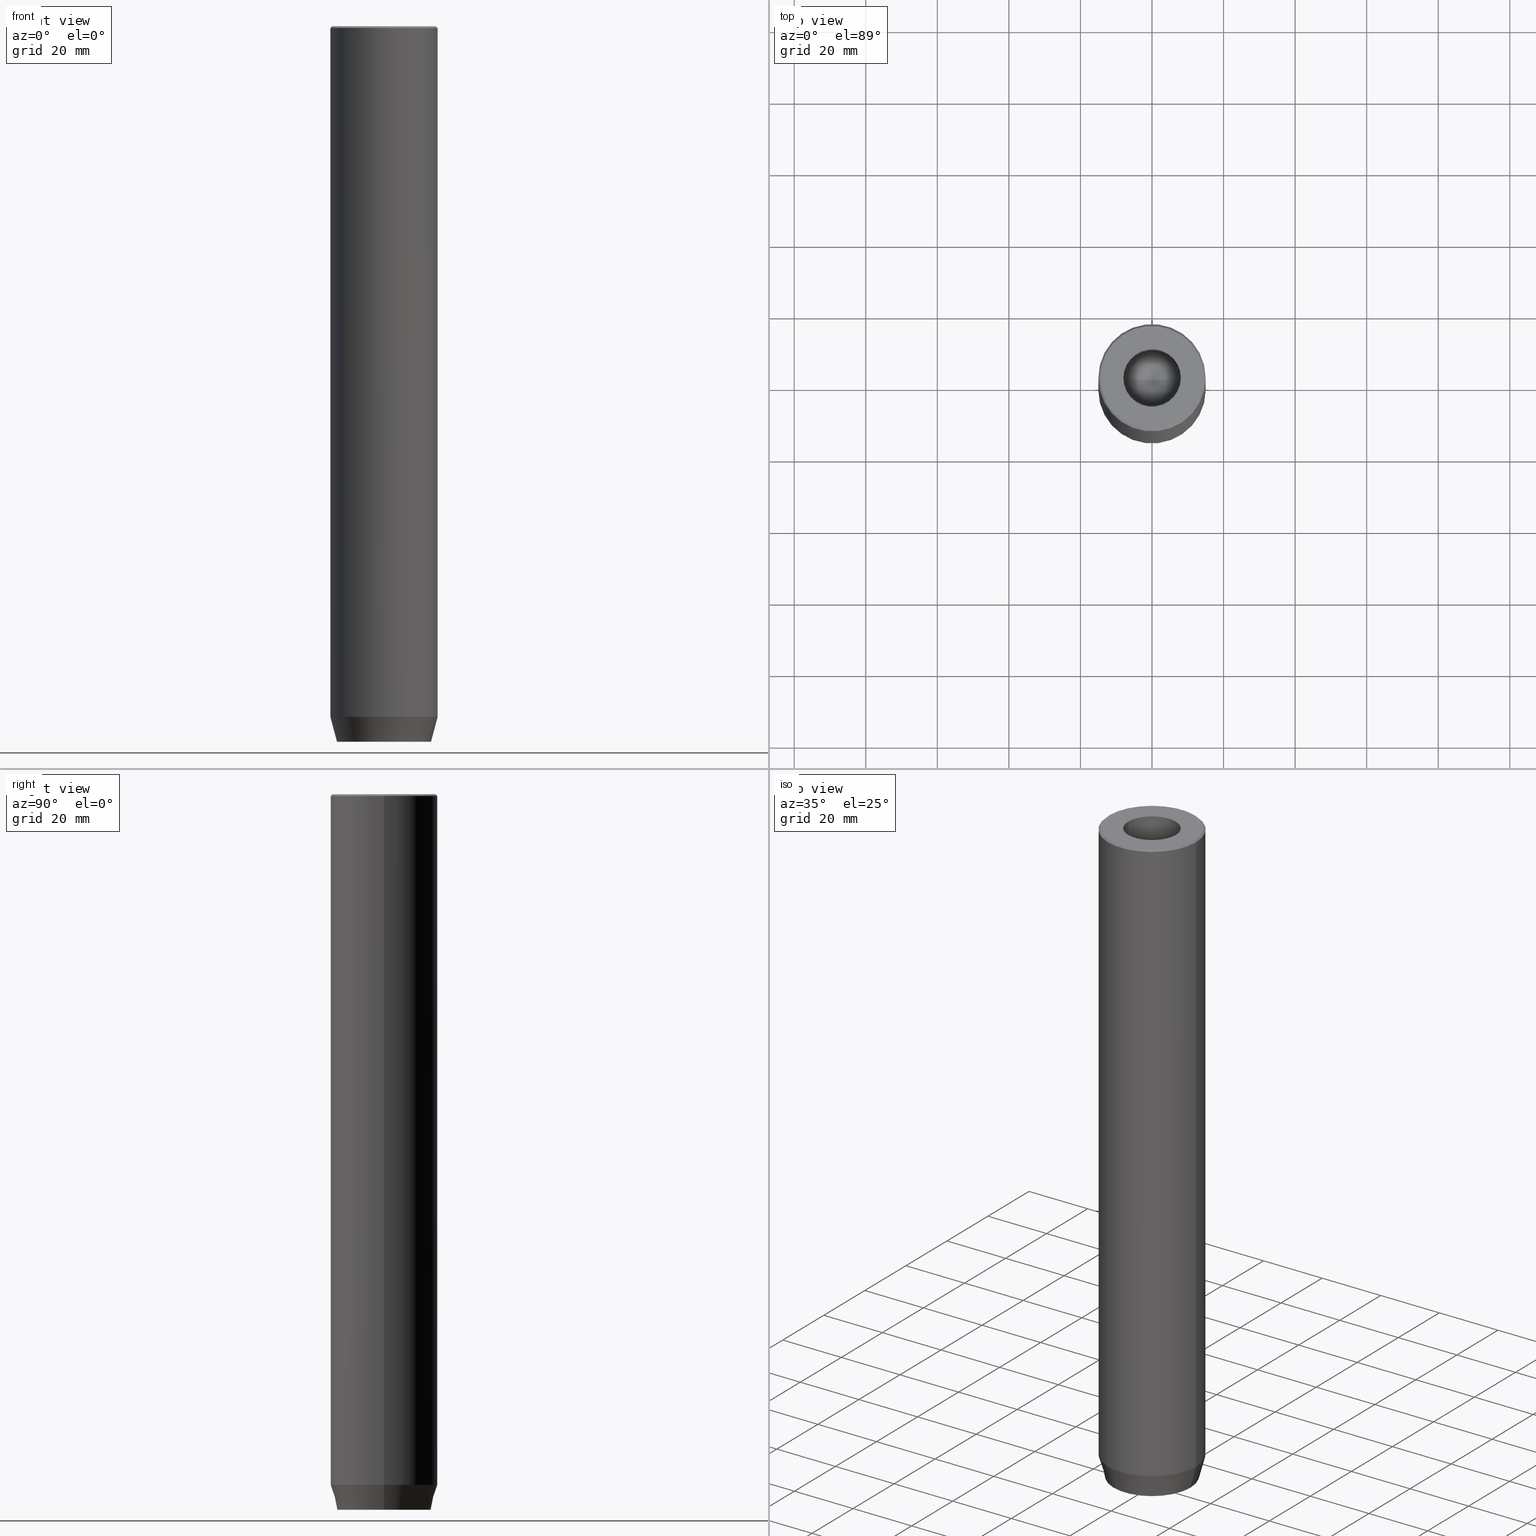
[diagram: canonical four-view strip — front | top / right | iso, engineering-drawing reading convention]
A machine part, canonical four-view strip (front | top / right | iso — engineering-drawing reading convention). The complete STEP part file that produces these views, byte-faithful:
ISO-10303-21;
HEADER;
FILE_DESCRIPTION (( 'STEP AP203' ),
    '1' );
FILE_NAME ('3c3d.STEP',
    '2024-01-02T17:24:24',
    ( '' ),
    ( '' ),
    'SwSTEP 2.0',
    'SolidWorks 2019',
    '' );
FILE_SCHEMA (( 'CONFIG_CONTROL_DESIGN' ));
ENDSEC;

DATA;
#1 = DIRECTION ( 'NONE',  ( 0.4999999999999999445, 0.8660254037844387076, -0.000000000000000000 ) ) ;
#2 = DIRECTION ( 'NONE',  ( 1.000000000000000000, 0.000000000000000000, 0.000000000000000000 ) ) ;
#3 = DIRECTION ( 'NONE',  ( -1.000000000000000000, 3.755786496842898071E-16, 0.000000000000000000 ) ) ;
#4 = ORIENTED_EDGE ( 'NONE', *, *, #317, .T. ) ;
#5 = CARTESIAN_POINT ( 'NONE',  ( 1.999999999999999556, -3.464101615137754386, -200.0000000000000000 ) ) ;
#6 = CARTESIAN_POINT ( 'NONE',  ( 0.000000000000000000, 0.000000000000000000, -0.5000000000000108802 ) ) ;
#7 = ORIENTED_EDGE ( 'NONE', *, *, #298, .F. ) ;
#8 = EDGE_CURVE ( 'NONE', #416, #528, #284, .T. ) ;
#9 = DIRECTION ( 'NONE',  ( -0.000000000000000000, -0.000000000000000000, 1.000000000000000000 ) ) ;
#10 = AXIS2_PLACEMENT_3D ( 'NONE', #308, #341, #344 ) ;
#11 = CIRCLE ( 'NONE', #462, 7.999999999999996447 ) ;
#12 = DIRECTION ( 'NONE',  ( 1.000000000000000000, 0.000000000000000000, 0.000000000000000000 ) ) ;
#13 = APPLICATION_PROTOCOL_DEFINITION ( 'international standard', 'config_control_design', 1994, #187 ) ;
#14 = ORIENTED_EDGE ( 'NONE', *, *, #618, .T. ) ;
#15 = DIRECTION ( 'NONE',  ( 1.000000000000000000, 0.000000000000000000, 0.000000000000000000 ) ) ;
#16 = EDGE_CURVE ( 'NONE', #60, #363, #444, .T. ) ;
#17 = DIRECTION ( 'NONE',  ( 1.000000000000000000, 0.000000000000000000, 0.000000000000000000 ) ) ;
#18 = CONICAL_SURFACE ( 'NONE', #10, 7.999999999999994671, 1.029744258676653423 ) ;
#19 = AXIS2_PLACEMENT_3D ( 'NONE', #282, #147, #104 ) ;
#20 = ORIENTED_EDGE ( 'NONE', *, *, #557, .F. ) ;
#21 = DIRECTION ( 'NONE',  ( -0.000000000000000000, -0.000000000000000000, 1.000000000000000000 ) ) ;
#22 = CARTESIAN_POINT ( 'NONE',  ( 1.999999999999999556, -3.464101615137754386, -194.2000000000000171 ) ) ;
#23 = ORIENTED_EDGE ( 'NONE', *, *, #403, .F. ) ;
#24 = APPROVAL_STATUS ( 'not_yet_approved' ) ;
#25 = DIRECTION ( 'NONE',  ( -0.8660254037844387076, 0.4999999999999997224, 0.000000000000000000 ) ) ;
#26 = ORIENTED_EDGE ( 'NONE', *, *, #107, .F. ) ;
#27 = DATE_AND_TIME ( #522, #112 ) ;
#28 = EDGE_CURVE ( 'NONE', #180, #60, #118, .T. ) ;
#29 = CYLINDRICAL_SURFACE ( 'NONE', #443, 7.999999999999996447 ) ;
#30 = AXIS2_PLACEMENT_3D ( 'NONE', #36, #421, #137 ) ;
#31 = ORIENTED_EDGE ( 'NONE', *, *, #74, .F. ) ;
#32 = COORDINATED_UNIVERSAL_TIME_OFFSET ( 1, 0, .AHEAD. ) ;
#33 = CARTESIAN_POINT ( 'NONE',  ( -7.999999999999994671, 9.797174393178819741E-16, -30.00000000000000000 ) ) ;
#34 = EDGE_LOOP ( 'NONE', ( #480, #562, #468 ) ) ;
#35 = APPROVAL_ROLE ( '' ) ;
#36 = CARTESIAN_POINT ( 'NONE',  ( 0.000000000000000000, 13.12435565298213369, -200.0000000000000000 ) ) ;
#37 = ADVANCED_FACE ( 'NONE', ( #534 ), #93, .F. ) ;
#38 = ORIENTED_EDGE ( 'NONE', *, *, #84, .T. ) ;
#39 = VECTOR ( 'NONE', #136, 1000.000000000000000 ) ;
#40 = DIRECTION ( 'NONE',  ( -0.8660254037844387076, 0.4999999999999997224, 0.000000000000000000 ) ) ;
#41 = VERTEX_POINT ( 'NONE', #486 ) ;
#42 = AXIS2_PLACEMENT_3D ( 'NONE', #129, #183, #81 ) ;
#43 = VECTOR ( 'NONE', #67, 1000.000000000000000 ) ;
#44 = DIRECTION ( 'NONE',  ( -0.000000000000000000, -0.000000000000000000, 1.000000000000000000 ) ) ;
#45 = ORIENTED_EDGE ( 'NONE', *, *, #557, .T. ) ;
#46 = CARTESIAN_POINT ( 'NONE',  ( 0.000000000000000000, 0.000000000000000000, -30.00000000000000000 ) ) ;
#47 = DIRECTION ( 'NONE',  ( 1.000000000000000000, 0.000000000000000000, 0.000000000000000000 ) ) ;
#48 = EDGE_CURVE ( 'NONE', #465, #521, #632, .T. ) ;
#49 = DIRECTION ( 'NONE',  ( 0.8660254037844387076, -0.4999999999999997780, 0.000000000000000000 ) ) ;
#50 = VERTEX_POINT ( 'NONE', #438 ) ;
#51 = DIRECTION ( 'NONE',  ( 1.000000000000000000, 0.000000000000000000, 0.000000000000000000 ) ) ;
#52 = VECTOR ( 'NONE', #153, 1000.000000000000000 ) ;
#53 = CARTESIAN_POINT ( 'NONE',  ( 0.000000000000000000, 0.000000000000000000, -194.2000000000000171 ) ) ;
#54 = ORIENTED_EDGE ( 'NONE', *, *, #420, .T. ) ;
#55 = DIRECTION ( 'NONE',  ( -0.000000000000000000, -0.000000000000000000, 1.000000000000000000 ) ) ;
#56 = CARTESIAN_POINT ( 'NONE',  ( 8.673617379884035472E-16, -4.618802153517004960, -194.2000000000000171 ) ) ;
#57 = EDGE_CURVE ( 'NONE', #41, #359, #333, .T. ) ;
#58 = CARTESIAN_POINT ( 'NONE',  ( 0.000000000000000000, 0.000000000000000000, -0.2999999999999999889 ) ) ;
#59 = DIRECTION ( 'NONE',  ( 0.000000000000000000, 0.000000000000000000, -1.000000000000000000 ) ) ;
#60 = VERTEX_POINT ( 'NONE', #394 ) ;
#61 = DIRECTION ( 'NONE',  ( 0.000000000000000000, 0.000000000000000000, 1.000000000000000000 ) ) ;
#62 =( GEOMETRIC_REPRESENTATION_CONTEXT ( 3 ) GLOBAL_UNCERTAINTY_ASSIGNED_CONTEXT ( ( #580 ) ) GLOBAL_UNIT_ASSIGNED_CONTEXT ( ( #116, #417, #364 ) ) REPRESENTATION_CONTEXT ( 'NONE', 'WORKASPACE' ) );
#63 = CARTESIAN_POINT ( 'NONE',  ( -7.999999999999996447, 9.797174393178821713E-16, -0.2999999999999999889 ) ) ;
#64 = ORIENTED_EDGE ( 'NONE', *, *, #505, .T. ) ;
#65 = DIRECTION ( 'NONE',  ( 0.000000000000000000, -1.000000000000000000, 0.000000000000000000 ) ) ;
#66 = ORIENTED_EDGE ( 'NONE', *, *, #98, .T. ) ;
#67 = DIRECTION ( 'NONE',  ( -0.000000000000000000, -0.000000000000000000, 1.000000000000000000 ) ) ;
#68 = FACE_OUTER_BOUND ( 'NONE', #429, .T. ) ;
#69 = CIRCLE ( 'NONE', #536, 14.49999999999998401 ) ;
#70 = AXIS2_PLACEMENT_3D ( 'NONE', #602, #21, #210 ) ;
#71 = ORIENTED_EDGE ( 'NONE', *, *, #243, .F. ) ;
#72 = CC_DESIGN_APPROVAL ( #79, ( #206 ) ) ;
#73 = CARTESIAN_POINT ( 'NONE',  ( 0.000000000000000000, 0.000000000000000000, -0.2999999999999999889 ) ) ;
#74 = EDGE_CURVE ( 'NONE', #363, #402, #501, .T. ) ;
#75 = ORIENTED_EDGE ( 'NONE', *, *, #185, .T. ) ;
#76 = PERSON_AND_ORGANIZATION ( #234, #586 ) ;
#77 = DIRECTION ( 'NONE',  ( 0.000000000000000000, -1.000000000000000000, 0.000000000000000000 ) ) ;
#78 = EDGE_LOOP ( 'NONE', ( #507, #7, #407, #31 ) ) ;
#79 = APPROVAL ( #24, 'NEUR�EN�' ) ;
#80 = APPROVAL_DATE_TIME ( #367, #79 ) ;
#81 = DIRECTION ( 'NONE',  ( 1.000000000000000000, 0.000000000000000000, 0.000000000000000000 ) ) ;
#82 = ORIENTED_EDGE ( 'NONE', *, *, #543, .T. ) ;
#83 = VECTOR ( 'NONE', #77, 1000.000000000000000 ) ;
#84 = EDGE_CURVE ( 'NONE', #608, #422, #91, .T. ) ;
#85 = DIRECTION ( 'NONE',  ( -0.000000000000000000, -0.000000000000000000, -1.000000000000000000 ) ) ;
#86 = ORIENTED_EDGE ( 'NONE', *, *, #164, .F. ) ;
#87 = PERSON_AND_ORGANIZATION ( #234, #586 ) ;
#88 = CARTESIAN_POINT ( 'NONE',  ( 0.000000000000000000, 0.000000000000000000, -193.0000000000000000 ) ) ;
#89 = CC_DESIGN_DATE_AND_TIME_ASSIGNMENT ( #323, #218, ( #206 ) ) ;
#90 = EDGE_LOOP ( 'NONE', ( #235, #598, #509 ) ) ;
#91 = CIRCLE ( 'NONE', #342, 7.999999999999996447 ) ;
#92 = LINE ( 'NONE', #377, #628 ) ;
#93 = PLANE ( 'NONE',  #166 ) ;
#94 = AXIS2_PLACEMENT_3D ( 'NONE', #6, #201, #405 ) ;
#95 = CIRCLE ( 'NONE', #205, 8.299999999999997158 ) ;
#96 = DIRECTION ( 'NONE',  ( 0.000000000000000000, 0.000000000000000000, -1.000000000000000000 ) ) ;
#97 = CARTESIAN_POINT ( 'NONE',  ( 15.00000000000000000, 0.000000000000000000, 0.000000000000000000 ) ) ;
#98 = EDGE_CURVE ( 'NONE', #353, #270, #517, .T. ) ;
#99 = CARTESIAN_POINT ( 'NONE',  ( 4.000000000000000000, -2.309401076758503368, -200.0000000000000000 ) ) ;
#100 = CARTESIAN_POINT ( 'NONE',  ( 4.000000000000000000, 2.309401076758504257, -194.2000000000000171 ) ) ;
#101 = DIRECTION ( 'NONE',  ( 1.000000000000000000, 0.000000000000000000, 0.000000000000000000 ) ) ;
#102 = DIRECTION ( 'NONE',  ( 0.000000000000000000, 0.000000000000000000, -1.000000000000000000 ) ) ;
#103 = EDGE_LOOP ( 'NONE', ( #249, #71, #573, #274 ) ) ;
#104 = DIRECTION ( 'NONE',  ( 1.000000000000000000, 0.000000000000000000, 0.000000000000000000 ) ) ;
#105 = CIRCLE ( 'NONE', #368, 13.12435565298213369 ) ;
#106 = TOROIDAL_SURFACE ( 'NONE', #70, 8.299999999999997158, 0.2999999999999999889 ) ;
#107 = EDGE_CURVE ( 'NONE', #559, #422, #199, .T. ) ;
#108 = DIRECTION ( 'NONE',  ( 0.000000000000000000, 0.000000000000000000, -1.000000000000000000 ) ) ;
#109 = LINE ( 'NONE', #361, #123 ) ;
#110 = CARTESIAN_POINT ( 'NONE',  ( -2.000000000000000000, 3.464101615137755275, -200.0000000000000000 ) ) ;
#111 = ORIENTED_EDGE ( 'NONE', *, *, #48, .F. ) ;
#112 = LOCAL_TIME ( 18, 24, 24.00000000000000000, #470 ) ;
#113 = ADVANCED_FACE ( 'NONE', ( #148 ), #265, .T. ) ;
#114 = DIRECTION ( 'NONE',  ( -0.8660254037844385966, -0.4999999999999998890, 0.000000000000000000 ) ) ;
#115 = ORIENTED_EDGE ( 'NONE', *, *, #396, .T. ) ;
#116 =( LENGTH_UNIT ( ) NAMED_UNIT ( * ) SI_UNIT ( .MILLI., .METRE. ) );
#117 = FACE_OUTER_BOUND ( 'NONE', #146, .T. ) ;
#118 = CIRCLE ( 'NONE', #198, 15.00000000000000000 ) ;
#119 = ORIENTED_EDGE ( 'NONE', *, *, #370, .T. ) ;
#120 = PERSON_AND_ORGANIZATION ( #234, #586 ) ;
#121 = DIRECTION ( 'NONE',  ( 1.000000000000000000, 0.000000000000000000, 0.000000000000000000 ) ) ;
#122 = ADVANCED_FACE ( 'NONE', ( #68 ), #269, .T. ) ;
#123 = VECTOR ( 'NONE', #599, 1000.000000000000000 ) ;
#124 = AXIS2_PLACEMENT_3D ( 'NONE', #606, #9, #354 ) ;
#125 = ORIENTED_EDGE ( 'NONE', *, *, #604, .F. ) ;
#126 = FACE_OUTER_BOUND ( 'NONE', #524, .T. ) ;
#127 = ORIENTED_EDGE ( 'NONE', *, *, #396, .F. ) ;
#128 = SECURITY_CLASSIFICATION_LEVEL ( 'unclassified' ) ;
#129 = CARTESIAN_POINT ( 'NONE',  ( 0.000000000000000000, 0.000000000000000000, -30.00000000000000000 ) ) ;
#130 = ORIENTED_EDGE ( 'NONE', *, *, #164, .T. ) ;
#131 = AXIS2_PLACEMENT_3D ( 'NONE', #162, #597, #108 ) ;
#132 = ADVANCED_FACE ( 'NONE', ( #312 ), #296, .F. ) ;
#133 = LINE ( 'NONE', #369, #345 ) ;
#134 = ORIENTED_EDGE ( 'NONE', *, *, #298, .T. ) ;
#135 = CARTESIAN_POINT ( 'NONE',  ( -4.000000000000001776, -2.309401076758503368, -200.0000000000000000 ) ) ;
#136 = DIRECTION ( 'NONE',  ( -0.000000000000000000, -0.000000000000000000, -1.000000000000000000 ) ) ;
#137 = DIRECTION ( 'NONE',  ( -1.000000000000000000, 0.000000000000000000, -0.000000000000000000 ) ) ;
#138 = ORIENTED_EDGE ( 'NONE', *, *, #525, .F. ) ;
#139 = AXIS2_PLACEMENT_3D ( 'NONE', #337, #539, #47 ) ;
#140 = AXIS2_PLACEMENT_3D ( 'NONE', #495, #1, #500 ) ;
#141 = DIRECTION ( 'NONE',  ( -0.8660254037844385966, -0.4999999999999998890, 0.000000000000000000 ) ) ;
#142 = ADVANCED_FACE ( 'NONE', ( #297 ), #18, .F. ) ;
#143 = DIRECTION ( 'NONE',  ( -0.000000000000000000, -0.000000000000000000, 1.000000000000000000 ) ) ;
#144 = AXIS2_PLACEMENT_3D ( 'NONE', #259, #302, #17 ) ;
#145 = PLANE ( 'NONE',  #494 ) ;
#146 = EDGE_LOOP ( 'NONE', ( #514, #161, #299, #266 ) ) ;
#147 = DIRECTION ( 'NONE',  ( 0.000000000000000000, -0.000000000000000000, 1.000000000000000000 ) ) ;
#148 = FACE_OUTER_BOUND ( 'NONE', #556, .T. ) ;
#149 = EDGE_CURVE ( 'NONE', #465, #457, #415, .T. ) ;
#150 = LINE ( 'NONE', #304, #553 ) ;
#151 = DIRECTION ( 'NONE',  ( -0.000000000000000000, -0.000000000000000000, 1.000000000000000000 ) ) ;
#152 = EDGE_LOOP ( 'NONE', ( #134, #163 ) ) ;
#153 = DIRECTION ( 'NONE',  ( -0.7071067811865512365, 0.000000000000000000, -0.7071067811865439090 ) ) ;
#154 = CIRCLE ( 'NONE', #547, 13.12435565298213369 ) ;
#155 = DIRECTION ( 'NONE',  ( -1.000000000000000000, 0.000000000000000000, -0.000000000000000000 ) ) ;
#156 = EDGE_LOOP ( 'NONE', ( #619, #309, #518, #257 ) ) ;
#157 = CYLINDRICAL_SURFACE ( 'NONE', #124, 15.00000000000000000 ) ;
#158 = EDGE_CURVE ( 'NONE', #228, #416, #590, .T. ) ;
#159 = FACE_OUTER_BOUND ( 'NONE', #220, .T. ) ;
#160 = CONICAL_SURFACE ( 'NONE', #408, 15.00000000000000000, 0.2617993877991500740 ) ;
#161 = ORIENTED_EDGE ( 'NONE', *, *, #227, .F. ) ;
#162 = CARTESIAN_POINT ( 'NONE',  ( 8.299999999999997158, 0.000000000000000000, -0.2999999999999999889 ) ) ;
#163 = ORIENTED_EDGE ( 'NONE', *, *, #538, .T. ) ;
#164 = EDGE_CURVE ( 'NONE', #306, #270, #351, .T. ) ;
#165 = CARTESIAN_POINT ( 'NONE',  ( -4.000000000000000888, 1.502314598737159623E-15, -194.2000000000000171 ) ) ;
#166 = AXIS2_PLACEMENT_3D ( 'NONE', #482, #436, #491 ) ;
#167 = VERTEX_POINT ( 'NONE', #452 ) ;
#168 = CALENDAR_DATE ( 2024, 2, 1 ) ;
#169 = FACE_BOUND ( 'NONE', #566, .T. ) ;
#170 = CONICAL_SURFACE ( 'NONE', #585, 14.49999999999998401, 0.7853981633974533860 ) ;
#171 = ORIENTED_EDGE ( 'NONE', *, *, #57, .F. ) ;
#172 = DATE_TIME_ROLE ( 'creation_date' ) ;
#173 = DIRECTION ( 'NONE',  ( -0.000000000000000000, -0.000000000000000000, -1.000000000000000000 ) ) ;
#174 = ORIENTED_EDGE ( 'NONE', *, *, #350, .T. ) ;
#175 = COORDINATED_UNIVERSAL_TIME_OFFSET ( 1, 0, .AHEAD. ) ;
#176 = PLANE ( 'NONE',  #30 ) ;
#177 = ORIENTED_EDGE ( 'NONE', *, *, #543, .F. ) ;
#178 = CARTESIAN_POINT ( 'NONE',  ( 15.00000000000000000, 0.000000000000000000, -0.5000000000000108802 ) ) ;
#179 = CIRCLE ( 'NONE', #42, 7.999999999999994671 ) ;
#180 = VERTEX_POINT ( 'NONE', #550 ) ;
#181 = AXIS2_PLACEMENT_3D ( 'NONE', #58, #461, #15 ) ;
#182 = APPROVAL_STATUS ( 'not_yet_approved' ) ;
#183 = DIRECTION ( 'NONE',  ( -0.000000000000000000, -0.000000000000000000, 1.000000000000000000 ) ) ;
#184 = EDGE_LOOP ( 'NONE', ( #215, #541, #244, #26 ) ) ;
#185 = EDGE_CURVE ( 'NONE', #167, #318, #105, .T. ) ;
#186 = CARTESIAN_POINT ( 'NONE',  ( 4.000000000000000000, 2.309401076758504257, -194.2000000000000171 ) ) ;
#187 = APPLICATION_CONTEXT ( 'configuration controlled 3d designs of mechanical parts and assemblies' ) ;
#188 = ORIENTED_EDGE ( 'NONE', *, *, #84, .F. ) ;
#189 = CARTESIAN_POINT ( 'NONE',  ( -15.00000000000000000, 1.836970198721029589E-15, 0.000000000000000000 ) ) ;
#190 = PRODUCT_DEFINITION ( 'NEZN�M�', '', #638, #332 ) ;
#191 = EDGE_LOOP ( 'NONE', ( #4, #411, #241, #448 ) ) ;
#192 = CC_DESIGN_APPROVAL ( #300, ( #190 ) ) ;
#193 = FACE_OUTER_BOUND ( 'NONE', #34, .T. ) ;
#194 = DIRECTION ( 'NONE',  ( -0.8660254037844385966, -0.4999999999999998890, 0.000000000000000000 ) ) ;
#195 = EDGE_CURVE ( 'NONE', #270, #489, #558, .T. ) ;
#196 = LINE ( 'NONE', #584, #537 ) ;
#197 = DIRECTION ( 'NONE',  ( 3.755786496842898071E-16, 1.000000000000000000, 0.000000000000000000 ) ) ;
#198 = AXIS2_PLACEMENT_3D ( 'NONE', #335, #378, #385 ) ;
#199 = CIRCLE ( 'NONE', #131, 0.2999999999999999889 ) ;
#200 = FACE_OUTER_BOUND ( 'NONE', #339, .T. ) ;
#201 = DIRECTION ( 'NONE',  ( 0.000000000000000000, 0.000000000000000000, -1.000000000000000000 ) ) ;
#202 = ORIENTED_EDGE ( 'NONE', *, *, #195, .T. ) ;
#203 = AXIS2_PLACEMENT_3D ( 'NONE', #22, #216, #418 ) ;
#204 = CYLINDRICAL_SURFACE ( 'NONE', #144, 15.00000000000000000 ) ;
#205 = AXIS2_PLACEMENT_3D ( 'NONE', #552, #453, #262 ) ;
#206 = SECURITY_CLASSIFICATION ( '', '', #128 ) ;
#207 = DIRECTION ( 'NONE',  ( 0.8660254037844387076, -0.4999999999999999445, 0.000000000000000000 ) ) ;
#208 = CARTESIAN_POINT ( 'NONE',  ( 7.999999999999996447, 0.000000000000000000, 0.000000000000000000 ) ) ;
#209 = ADVANCED_FACE ( 'NONE', ( #117 ), #512, .F. ) ;
#210 = DIRECTION ( 'NONE',  ( 1.000000000000000000, 0.000000000000000000, 0.000000000000000000 ) ) ;
#211 = ORIENTED_EDGE ( 'NONE', *, *, #513, .T. ) ;
#212 = FACE_OUTER_BOUND ( 'NONE', #459, .T. ) ;
#213 = AXIS2_PLACEMENT_3D ( 'NONE', #242, #398, #51 ) ;
#214 = ADVANCED_FACE ( 'NONE', ( #610 ), #446, .F. ) ;
#215 = ORIENTED_EDGE ( 'NONE', *, *, #505, .F. ) ;
#216 = DIRECTION ( 'NONE',  ( 0.5000000000000000000, -0.8660254037844387076, 0.000000000000000000 ) ) ;
#217 = VERTEX_POINT ( 'NONE', #498 ) ;
#218 = DATE_TIME_ROLE ( 'classification_date' ) ;
#219 = CARTESIAN_POINT ( 'NONE',  ( -13.12435565298213369, 1.722120106425316888E-15, -200.0000000000000000 ) ) ;
#220 = EDGE_LOOP ( 'NONE', ( #496, #554, #614, #188 ) ) ;
#221 = APPROVAL_DATE_TIME ( #27, #300 ) ;
#222 = DIRECTION ( 'NONE',  ( -0.000000000000000000, -0.000000000000000000, 1.000000000000000000 ) ) ;
#223 = VECTOR ( 'NONE', #463, 999.9999999999998863 ) ;
#224 = AXIS2_PLACEMENT_3D ( 'NONE', #502, #61, #571 ) ;
#225 = ORIENTED_EDGE ( 'NONE', *, *, #305, .F. ) ;
#226 = DIRECTION ( 'NONE',  ( -0.000000000000000000, -0.000000000000000000, 1.000000000000000000 ) ) ;
#227 = EDGE_CURVE ( 'NONE', #457, #217, #401, .T. ) ;
#228 = VERTEX_POINT ( 'NONE', #450 ) ;
#229 = DIRECTION ( 'NONE',  ( 1.000000000000000000, 0.000000000000000000, 0.000000000000000000 ) ) ;
#230 = CC_DESIGN_PERSON_AND_ORGANIZATION_ASSIGNMENT ( #267, #466, ( #542 ) ) ;
#231 = ORIENTED_EDGE ( 'NONE', *, *, #8, .F. ) ;
#232 = DATE_AND_TIME ( #423, #273 ) ;
#233 = CARTESIAN_POINT ( 'NONE',  ( 0.000000000000000000, 0.000000000000000000, 0.000000000000000000 ) ) ;
#234 = PERSON ( 'NEUR�EN�', 'NEUR�EN�', 'NEUR�EN�', ('NEUR�EN�'), ('NEUR�EN�'), ('NEUR�EN�') ) ;
#235 = ORIENTED_EDGE ( 'NONE', *, *, #464, .F. ) ;
#236 = CIRCLE ( 'NONE', #596, 0.2999999999999999334 ) ;
#237 = EDGE_CURVE ( 'NONE', #402, #363, #311, .T. ) ;
#238 = DIRECTION ( 'NONE',  ( 1.000000000000000000, 0.000000000000000000, 0.000000000000000000 ) ) ;
#239 = VERTEX_POINT ( 'NONE', #623 ) ;
#240 = CARTESIAN_POINT ( 'NONE',  ( -1.999999999999999112, -3.464101615137755275, -194.2000000000000171 ) ) ;
#241 = ORIENTED_EDGE ( 'NONE', *, *, #391, .F. ) ;
#242 = CARTESIAN_POINT ( 'NONE',  ( 0.000000000000000000, 0.000000000000000000, 0.000000000000000000 ) ) ;
#243 = EDGE_CURVE ( 'NONE', #359, #41, #179, .T. ) ;
#244 = ORIENTED_EDGE ( 'NONE', *, *, #439, .F. ) ;
#245 = AXIS2_PLACEMENT_3D ( 'NONE', #535, #449, #343 ) ;
#246 = DIRECTION ( 'NONE',  ( 1.000000000000000000, 0.000000000000000000, 0.000000000000000000 ) ) ;
#247 = CC_DESIGN_PERSON_AND_ORGANIZATION_ASSIGNMENT ( #275, #376, ( #206 ) ) ;
#248 = CARTESIAN_POINT ( 'NONE',  ( 0.000000000000000000, 0.000000000000000000, -200.0000000000000000 ) ) ;
#249 = ORIENTED_EDGE ( 'NONE', *, *, #350, .F. ) ;
#250 = LINE ( 'NONE', #5, #484 ) ;
#251 = DIRECTION ( 'NONE',  ( -0.000000000000000000, -0.000000000000000000, -1.000000000000000000 ) ) ;
#252 = FACE_OUTER_BOUND ( 'NONE', #156, .T. ) ;
#253 = CARTESIAN_POINT ( 'NONE',  ( 2.000000000000000000, 3.464101615137755275, -194.2000000000000171 ) ) ;
#254 = EDGE_LOOP ( 'NONE', ( #202, #225, #138, #130 ) ) ;
#255 = ADVANCED_FACE ( 'NONE', ( #476 ), #170, .T. ) ;
#256 = VECTOR ( 'NONE', #25, 1000.000000000000114 ) ;
#257 = ORIENTED_EDGE ( 'NONE', *, *, #74, .T. ) ;
#258 = DIRECTION ( 'NONE',  ( 0.8660254037844387076, -0.4999999999999999445, 0.000000000000000000 ) ) ;
#259 = CARTESIAN_POINT ( 'NONE',  ( 0.000000000000000000, 0.000000000000000000, 0.000000000000000000 ) ) ;
#260 = EDGE_CURVE ( 'NONE', #50, #363, #92, .T. ) ;
#261 = ORIENTED_EDGE ( 'NONE', *, *, #618, .F. ) ;
#262 = DIRECTION ( 'NONE',  ( 1.000000000000000000, 0.000000000000000000, 0.000000000000000000 ) ) ;
#263 = CARTESIAN_POINT ( 'NONE',  ( 0.000000000000000000, 0.000000000000000000, 0.000000000000000000 ) ) ;
#264 = ORIENTED_EDGE ( 'NONE', *, *, #271, .T. ) ;
#265 = PLANE ( 'NONE',  #334 ) ;
#266 = ORIENTED_EDGE ( 'NONE', *, *, #48, .T. ) ;
#267 = PERSON_AND_ORGANIZATION ( #234, #586 ) ;
#268 = DIRECTION ( 'NONE',  ( 1.000000000000000000, 0.000000000000000000, 0.000000000000000000 ) ) ;
#269 = CONICAL_SURFACE ( 'NONE', #575, 14.49999999999998401, 0.7853981633974533860 ) ;
#270 = VERTEX_POINT ( 'NONE', #620 ) ;
#271 = EDGE_CURVE ( 'NONE', #239, #353, #133, .T. ) ;
#272 = DIRECTION ( 'NONE',  ( -0.000000000000000000, -0.000000000000000000, 1.000000000000000000 ) ) ;
#273 = LOCAL_TIME ( 18, 24, 24.00000000000000000, #175 ) ;
#274 = ORIENTED_EDGE ( 'NONE', *, *, #439, .T. ) ;
#275 = PERSON_AND_ORGANIZATION ( #234, #586 ) ;
#276 = DIRECTION ( 'NONE',  ( 1.000000000000000000, 0.000000000000000000, 0.000000000000000000 ) ) ;
#277 = ORIENTED_EDGE ( 'NONE', *, *, #391, .T. ) ;
#278 = APPROVAL_DATE_TIME ( #567, #409 ) ;
#279 = DIRECTION ( 'NONE',  ( 1.000000000000000000, 0.000000000000000000, 0.000000000000000000 ) ) ;
#280 = EDGE_CURVE ( 'NONE', #389, #41, #471, .T. ) ;
#281 = ORIENTED_EDGE ( 'NONE', *, *, #149, .T. ) ;
#282 = CARTESIAN_POINT ( 'NONE',  ( 0.000000000000000000, 0.000000000000000000, 0.000000000000000000 ) ) ;
#283 = VECTOR ( 'NONE', #258, 999.9999999999998863 ) ;
#284 = LINE ( 'NONE', #100, #39 ) ;
#285 = DIRECTION ( 'NONE',  ( 0.8660254037844387076, 0.4999999999999999445, 0.000000000000000000 ) ) ;
#286 = ORIENTED_EDGE ( 'NONE', *, *, #525, .T. ) ;
#287 = DIRECTION ( 'NONE',  ( -0.000000000000000000, -0.000000000000000000, 1.000000000000000000 ) ) ;
#288 = ORIENTED_EDGE ( 'NONE', *, *, #158, .F. ) ;
#289 = CLOSED_SHELL ( 'NONE', ( #569, #493, #142, #122, #374, #588, #328, #428, #578, #355, #255, #447, #379, #551, #600, #214, #533, #209, #37, #132, #113 ) ) ;
#290 = DIRECTION ( 'NONE',  ( 1.000000000000000000, 0.000000000000000000, 0.000000000000000000 ) ) ;
#291 = DIRECTION ( 'NONE',  ( 0.000000000000000000, 0.000000000000000000, -1.000000000000000000 ) ) ;
#292 = VECTOR ( 'NONE', #194, 1000.000000000000227 ) ;
#293 = EDGE_LOOP ( 'NONE', ( #530, #64 ) ) ;
#294 = VECTOR ( 'NONE', #287, 1000.000000000000000 ) ;
#295 = CARTESIAN_POINT ( 'NONE',  ( -8.299999999999997158, 1.016456843292302637E-15, -0.2999999999999999889 ) ) ;
#296 = PLANE ( 'NONE',  #140 ) ;
#297 = FACE_OUTER_BOUND ( 'NONE', #90, .T. ) ;
#298 = EDGE_CURVE ( 'NONE', #454, #50, #69, .T. ) ;
#299 = ORIENTED_EDGE ( 'NONE', *, *, #149, .F. ) ;
#300 = APPROVAL ( #182, 'NEUR�EN�' ) ;
#301 = VECTOR ( 'NONE', #324, 1000.000000000000000 ) ;
#302 = DIRECTION ( 'NONE',  ( -0.000000000000000000, -0.000000000000000000, 1.000000000000000000 ) ) ;
#303 = CIRCLE ( 'NONE', #245, 15.00000000000000000 ) ;
#304 = CARTESIAN_POINT ( 'NONE',  ( -15.00000000000000000, 1.836970198721029589E-15, -193.0000000000000000 ) ) ;
#305 = EDGE_CURVE ( 'NONE', #228, #489, #572, .T. ) ;
#306 = VERTEX_POINT ( 'NONE', #527 ) ;
#307 = CC_DESIGN_PERSON_AND_ORGANIZATION_ASSIGNMENT ( #612, #319, ( #638 ) ) ;
#308 = CARTESIAN_POINT ( 'NONE',  ( 0.000000000000000000, 0.000000000000000000, -30.00000000000000000 ) ) ;
#309 = ORIENTED_EDGE ( 'NONE', *, *, #28, .T. ) ;
#310 = PERSON_AND_ORGANIZATION_ROLE ( 'creator' ) ;
#311 = CIRCLE ( 'NONE', #94, 15.00000000000000000 ) ;
#312 = FACE_OUTER_BOUND ( 'NONE', #322, .T. ) ;
#313 = TOROIDAL_SURFACE ( 'NONE', #181, 8.299999999999997158, 0.2999999999999999889 ) ;
#314 = CC_DESIGN_SECURITY_CLASSIFICATION ( #206, ( #638 ) ) ;
#315 = VERTEX_POINT ( 'NONE', #467 ) ;
#316 = DIRECTION ( 'NONE',  ( -0.000000000000000000, -0.000000000000000000, 1.000000000000000000 ) ) ;
#317 = EDGE_CURVE ( 'NONE', #217, #353, #565, .T. ) ;
#318 = VERTEX_POINT ( 'NONE', #219 ) ;
#319 = PERSON_AND_ORGANIZATION_ROLE ( 'creator' ) ;
#320 = DIRECTION ( 'NONE',  ( -1.000000000000000000, 0.000000000000000000, 0.000000000000000000 ) ) ;
#321 = AXIS2_PLACEMENT_3D ( 'NONE', #587, #59, #12 ) ;
#322 = EDGE_LOOP ( 'NONE', ( #45, #231, #288, #611 ) ) ;
#323 = DATE_AND_TIME ( #574, #564 ) ;
#324 = DIRECTION ( 'NONE',  ( -0.8571673007021117785, 1.049727191138617956E-16, 0.5150380749100550437 ) ) ;
#325 = VECTOR ( 'NONE', #540, 1000.000000000000000 ) ;
#326 = LOCAL_TIME ( 18, 24, 24.00000000000000000, #372 ) ;
#327 = CARTESIAN_POINT ( 'NONE',  ( 4.000000000000000000, -2.309401076758503368, -194.2000000000000171 ) ) ;
#328 = ADVANCED_FACE ( 'NONE', ( #169, #479 ), #176, .T. ) ;
#329 = CARTESIAN_POINT ( 'NONE',  ( 4.000000000000000000, 0.000000000000000000, -194.2000000000000171 ) ) ;
#330 = DIRECTION ( 'NONE',  ( -0.000000000000000000, -0.000000000000000000, -1.000000000000000000 ) ) ;
#331 = FACE_OUTER_BOUND ( 'NONE', #387, .T. ) ;
#332 = DESIGN_CONTEXT ( 'detailed design', #381, 'design' ) ;
#333 = CIRCLE ( 'NONE', #139, 7.999999999999994671 ) ;
#334 = AXIS2_PLACEMENT_3D ( 'NONE', #53, #291, #155 ) ;
#335 = CARTESIAN_POINT ( 'NONE',  ( 0.000000000000000000, 0.000000000000000000, -193.0000000000000000 ) ) ;
#336 = LINE ( 'NONE', #189, #294 ) ;
#337 = CARTESIAN_POINT ( 'NONE',  ( 0.000000000000000000, 0.000000000000000000, -30.00000000000000000 ) ) ;
#338 = LINE ( 'NONE', #549, #504 ) ;
#339 = EDGE_LOOP ( 'NONE', ( #171, #174, #38, #125 ) ) ;
#340 = CARTESIAN_POINT ( 'NONE',  ( 4.000000000000000000, -2.309401076758503368, -194.2000000000000171 ) ) ;
#341 = DIRECTION ( 'NONE',  ( -0.000000000000000000, -0.000000000000000000, 1.000000000000000000 ) ) ;
#342 = AXIS2_PLACEMENT_3D ( 'NONE', #73, #151, #607 ) ;
#343 = DIRECTION ( 'NONE',  ( 1.000000000000000000, 0.000000000000000000, 0.000000000000000000 ) ) ;
#344 = DIRECTION ( 'NONE',  ( 1.000000000000000000, 0.000000000000000000, 0.000000000000000000 ) ) ;
#345 = VECTOR ( 'NONE', #173, 1000.000000000000000 ) ;
#346 = ORIENTED_EDGE ( 'NONE', *, *, #185, .F. ) ;
#347 = CIRCLE ( 'NONE', #213, 14.49999999999998401 ) ;
#348 = LOCAL_TIME ( 18, 24, 24.00000000000000000, #32 ) ;
#349 = CARTESIAN_POINT ( 'NONE',  ( 0.000000000000000000, 0.000000000000000000, -0.2999999999999999889 ) ) ;
#350 = EDGE_CURVE ( 'NONE', #41, #608, #613, .T. ) ;
#351 = LINE ( 'NONE', #593, #503 ) ;
#352 = ORIENTED_EDGE ( 'NONE', *, *, #403, .T. ) ;
#353 = VERTEX_POINT ( 'NONE', #135 ) ;
#354 = DIRECTION ( 'NONE',  ( 1.000000000000000000, 0.000000000000000000, 0.000000000000000000 ) ) ;
#355 = ADVANCED_FACE ( 'NONE', ( #126 ), #160, .T. ) ;
#356 = EDGE_LOOP ( 'NONE', ( #66, #86, #425, #264 ) ) ;
#357 = CARTESIAN_POINT ( 'NONE',  ( 4.000000000000000000, 0.000000000000000000, -200.0000000000000000 ) ) ;
#358 = APPROVAL_PERSON_ORGANIZATION ( #87, #409, #35 ) ;
#359 = VERTEX_POINT ( 'NONE', #579 ) ;
#360 = CC_DESIGN_PERSON_AND_ORGANIZATION_ASSIGNMENT ( #432, #310, ( #190 ) ) ;
#361 = CARTESIAN_POINT ( 'NONE',  ( 15.00000000000000000, 0.000000000000000000, -193.0000000000000000 ) ) ;
#362 = DIRECTION ( 'NONE',  ( -1.000000000000000000, 0.000000000000000000, 0.000000000000000000 ) ) ;
#363 = VERTEX_POINT ( 'NONE', #178 ) ;
#364 =( NAMED_UNIT ( * ) SI_UNIT ( $, .STERADIAN. ) SOLID_ANGLE_UNIT ( ) );
#365 = CARTESIAN_POINT ( 'NONE',  ( 1.999999999999999556, -3.464101615137754386, -194.2000000000000171 ) ) ;
#366 = EDGE_LOOP ( 'NONE', ( #14, #111, #431, #621 ) ) ;
#367 = DATE_AND_TIME ( #519, #348 ) ;
#368 = AXIS2_PLACEMENT_3D ( 'NONE', #248, #548, #121 ) ;
#369 = CARTESIAN_POINT ( 'NONE',  ( -4.000000000000001776, -2.309401076758503368, -194.2000000000000171 ) ) ;
#370 = EDGE_CURVE ( 'NONE', #416, #465, #380, .T. ) ;
#371 = ORIENTED_EDGE ( 'NONE', *, *, #158, .T. ) ;
#372 = COORDINATED_UNIVERSAL_TIME_OFFSET ( 1, 0, .AHEAD. ) ;
#373 = CARTESIAN_POINT ( 'NONE',  ( 0.000000000000000000, 0.000000000000000000, 0.000000000000000000 ) ) ;
#374 = ADVANCED_FACE ( 'NONE', ( #331 ), #603, .T. ) ;
#375 = ORIENTED_EDGE ( 'NONE', *, *, #237, .T. ) ;
#376 = PERSON_AND_ORGANIZATION_ROLE ( 'classification_officer' ) ;
#377 = CARTESIAN_POINT ( 'NONE',  ( 14.49999999999998401, 1.775737858763660240E-15, 0.000000000000000000 ) ) ;
#378 = DIRECTION ( 'NONE',  ( -0.000000000000000000, -0.000000000000000000, 1.000000000000000000 ) ) ;
#379 = ADVANCED_FACE ( 'NONE', ( #529 ), #29, .F. ) ;
#380 = LINE ( 'NONE', #329, #83 ) ;
#381 = APPLICATION_CONTEXT ( 'configuration controlled 3d designs of mechanical parts and assemblies' ) ;
#382 = VECTOR ( 'NONE', #207, 999.9999999999998863 ) ;
#383 = CIRCLE ( 'NONE', #413, 8.299999999999997158 ) ;
#384 = MANIFOLD_SOLID_BREP ( 'Odebrat vysunut�m1', #289 ) ;
#385 = DIRECTION ( 'NONE',  ( 1.000000000000000000, 0.000000000000000000, 0.000000000000000000 ) ) ;
#386 = CARTESIAN_POINT ( 'NONE',  ( -7.999999999999996447, 9.797174393178821713E-16, 0.000000000000000000 ) ) ;
#387 = EDGE_LOOP ( 'NONE', ( #75, #82, #23, #594 ) ) ;
#388 = DIRECTION ( 'NONE',  ( 1.224646799147353207E-16, 1.000000000000000000, 0.000000000000000000 ) ) ;
#389 = VERTEX_POINT ( 'NONE', #568 ) ;
#390 = CYLINDRICAL_SURFACE ( 'NONE', #629, 7.999999999999996447 ) ;
#391 = EDGE_CURVE ( 'NONE', #457, #239, #523, .T. ) ;
#392 = VECTOR ( 'NONE', #316, 1000.000000000000000 ) ;
#393 = APPROVAL_PERSON_ORGANIZATION ( #76, #300, #560 ) ;
#394 = CARTESIAN_POINT ( 'NONE',  ( 15.00000000000000000, 0.000000000000000000, -193.0000000000000000 ) ) ;
#395 = LINE ( 'NONE', #635, #325 ) ;
#396 = EDGE_CURVE ( 'NONE', #318, #167, #154, .T. ) ;
#397 = CARTESIAN_POINT ( 'NONE',  ( -4.000000000000000888, 1.502314598737159623E-15, -200.0000000000000000 ) ) ;
#398 = DIRECTION ( 'NONE',  ( -0.000000000000000000, -0.000000000000000000, 1.000000000000000000 ) ) ;
#399 = ADVANCED_BREP_SHAPE_REPRESENTATION ( '3c3d', ( #384, #224 ), #62 ) ;
#400 = VECTOR ( 'NONE', #143, 1000.000000000000000 ) ;
#401 = LINE ( 'NONE', #56, #406 ) ;
#402 = VERTEX_POINT ( 'NONE', #492 ) ;
#403 = EDGE_CURVE ( 'NONE', #60, #180, #303, .T. ) ;
#404 = CARTESIAN_POINT ( 'NONE',  ( 0.000000000000000000, 0.000000000000000000, 0.000000000000000000 ) ) ;
#405 = DIRECTION ( 'NONE',  ( 1.000000000000000000, 0.000000000000000000, 0.000000000000000000 ) ) ;
#406 = VECTOR ( 'NONE', #251, 1000.000000000000000 ) ;
#407 = ORIENTED_EDGE ( 'NONE', *, *, #487, .T. ) ;
#408 = AXIS2_PLACEMENT_3D ( 'NONE', #520, #272, #229 ) ;
#409 = APPROVAL ( #563, 'NEUR�EN�' ) ;
#410 = CARTESIAN_POINT ( 'NONE',  ( 8.299999999999997158, 0.000000000000000000, 0.000000000000000000 ) ) ;
#411 = ORIENTED_EDGE ( 'NONE', *, *, #271, .F. ) ;
#412 = CARTESIAN_POINT ( 'NONE',  ( 2.000000000000000000, 3.464101615137755275, -200.0000000000000000 ) ) ;
#413 = AXIS2_PLACEMENT_3D ( 'NONE', #595, #96, #2 ) ;
#414 = CC_DESIGN_APPROVAL ( #409, ( #638 ) ) ;
#415 = LINE ( 'NONE', #365, #292 ) ;
#416 = VERTEX_POINT ( 'NONE', #186 ) ;
#417 =( NAMED_UNIT ( * ) PLANE_ANGLE_UNIT ( ) SI_UNIT ( $, .RADIAN. ) );
#418 = DIRECTION ( 'NONE',  ( 0.8660254037844385966, 0.4999999999999999445, 0.000000000000000000 ) ) ;
#419 = EDGE_LOOP ( 'NONE', ( #346, #127 ) ) ;
#420 = EDGE_CURVE ( 'NONE', #180, #402, #336, .T. ) ;
#421 = DIRECTION ( 'NONE',  ( 0.000000000000000000, 0.000000000000000000, -1.000000000000000000 ) ) ;
#422 = VERTEX_POINT ( 'NONE', #483 ) ;
#423 = CALENDAR_DATE ( 2024, 2, 1 ) ;
#424 = DIRECTION ( 'NONE',  ( -0.000000000000000000, -0.000000000000000000, 1.000000000000000000 ) ) ;
#425 = ORIENTED_EDGE ( 'NONE', *, *, #513, .F. ) ;
#426 = APPROVAL_ROLE ( '' ) ;
#427 = DIRECTION ( 'NONE',  ( 0.7071067811865512365, 8.659560562354979697E-17, -0.7071067811865439090 ) ) ;
#428 = ADVANCED_FACE ( 'NONE', ( #442, #546 ), #582, .T. ) ;
#429 = EDGE_LOOP ( 'NONE', ( #472, #624, #605, #577 ) ) ;
#430 = DIRECTION ( 'NONE',  ( 0.000000000000000000, 0.000000000000000000, -1.000000000000000000 ) ) ;
#431 = ORIENTED_EDGE ( 'NONE', *, *, #370, .F. ) ;
#432 = PERSON_AND_ORGANIZATION ( #234, #586 ) ;
#433 = CARTESIAN_POINT ( 'NONE',  ( 0.000000000000000000, 0.000000000000000000, -200.0000000000000000 ) ) ;
#434 = VECTOR ( 'NONE', #85, 1000.000000000000000 ) ;
#435 = AXIS2_PLACEMENT_3D ( 'NONE', #88, #424, #268 ) ;
#436 = DIRECTION ( 'NONE',  ( 1.000000000000000000, 0.000000000000000000, -0.000000000000000000 ) ) ;
#437 = DIRECTION ( 'NONE',  ( 3.755786496842898071E-16, 1.000000000000000000, 0.000000000000000000 ) ) ;
#438 = CARTESIAN_POINT ( 'NONE',  ( 14.49999999999998401, 1.806354028742345013E-15, 0.000000000000000000 ) ) ;
#439 = EDGE_CURVE ( 'NONE', #422, #608, #11, .T. ) ;
#440 = DIRECTION ( 'NONE',  ( -0.000000000000000000, -0.000000000000000000, 1.000000000000000000 ) ) ;
#441 = ORIENTED_EDGE ( 'NONE', *, *, #317, .F. ) ;
#442 = FACE_BOUND ( 'NONE', #293, .T. ) ;
#443 = AXIS2_PLACEMENT_3D ( 'NONE', #373, #222, #279 ) ;
#444 = LINE ( 'NONE', #97, #400 ) ;
#445 = CARTESIAN_POINT ( 'NONE',  ( 8.673617379884035472E-16, -4.618802153517004960, -194.2000000000000171 ) ) ;
#446 = PLANE ( 'NONE',  #460 ) ;
#447 = ADVANCED_FACE ( 'NONE', ( #193 ), #526, .F. ) ;
#448 = ORIENTED_EDGE ( 'NONE', *, *, #227, .T. ) ;
#449 = DIRECTION ( 'NONE',  ( -0.000000000000000000, -0.000000000000000000, 1.000000000000000000 ) ) ;
#450 = CARTESIAN_POINT ( 'NONE',  ( 2.168404344971008868E-16, 4.618802153517005848, -194.2000000000000171 ) ) ;
#451 = LINE ( 'NONE', #412, #283 ) ;
#452 = CARTESIAN_POINT ( 'NONE',  ( 13.12435565298213369, 0.000000000000000000, -200.0000000000000000 ) ) ;
#453 = DIRECTION ( 'NONE',  ( 0.000000000000000000, 0.000000000000000000, -1.000000000000000000 ) ) ;
#454 = VERTEX_POINT ( 'NONE', #589 ) ;
#455 = LINE ( 'NONE', #357, #485 ) ;
#456 = EDGE_CURVE ( 'NONE', #315, #608, #236, .T. ) ;
#457 = VERTEX_POINT ( 'NONE', #445 ) ;
#458 = FACE_OUTER_BOUND ( 'NONE', #254, .T. ) ;
#459 = EDGE_LOOP ( 'NONE', ( #352, #54, #375, #583 ) ) ;
#460 = AXIS2_PLACEMENT_3D ( 'NONE', #165, #3, #561 ) ;
#461 = DIRECTION ( 'NONE',  ( -0.000000000000000000, -0.000000000000000000, 1.000000000000000000 ) ) ;
#462 = AXIS2_PLACEMENT_3D ( 'NONE', #349, #440, #246 ) ;
#463 = DIRECTION ( 'NONE',  ( 0.8660254037844387076, 0.4999999999999999445, 0.000000000000000000 ) ) ;
#464 = EDGE_CURVE ( 'NONE', #389, #359, #395, .T. ) ;
#465 = VERTEX_POINT ( 'NONE', #340 ) ;
#466 = PERSON_AND_ORGANIZATION_ROLE ( 'design_owner' ) ;
#467 = CARTESIAN_POINT ( 'NONE',  ( -8.299999999999997158, 1.016456843292302637E-15, 0.000000000000000000 ) ) ;
#468 = ORIENTED_EDGE ( 'NONE', *, *, #243, .T. ) ;
#469 = CC_DESIGN_DATE_AND_TIME_ASSIGNMENT ( #232, #172, ( #190 ) ) ;
#470 = COORDINATED_UNIVERSAL_TIME_OFFSET ( 1, 0, .AHEAD. ) ;
#471 = LINE ( 'NONE', #33, #301 ) ;
#472 = ORIENTED_EDGE ( 'NONE', *, *, #538, .F. ) ;
#473 = PERSON_AND_ORGANIZATION ( #234, #586 ) ;
#474 = AXIS2_PLACEMENT_3D ( 'NONE', #46, #55, #101 ) ;
#475 = EDGE_CURVE ( 'NONE', #521, #217, #250, .T. ) ;
#476 = FACE_OUTER_BOUND ( 'NONE', #78, .T. ) ;
#477 = ORIENTED_EDGE ( 'NONE', *, *, #98, .F. ) ;
#478 = MECHANICAL_CONTEXT ( 'NONE', #187, 'mechanical' ) ;
#479 = FACE_OUTER_BOUND ( 'NONE', #419, .T. ) ;
#480 = ORIENTED_EDGE ( 'NONE', *, *, #280, .F. ) ;
#481 = CARTESIAN_POINT ( 'NONE',  ( -1.999999999999999112, -3.464101615137755275, -194.2000000000000171 ) ) ;
#482 = CARTESIAN_POINT ( 'NONE',  ( 4.000000000000000000, 0.000000000000000000, -194.2000000000000171 ) ) ;
#483 = CARTESIAN_POINT ( 'NONE',  ( 7.999999999999996447, 0.000000000000000000, -0.2999999999999999889 ) ) ;
#484 = VECTOR ( 'NONE', #141, 1000.000000000000227 ) ;
#485 = VECTOR ( 'NONE', #65, 1000.000000000000000 ) ;
#486 = CARTESIAN_POINT ( 'NONE',  ( -7.999999999999994671, 9.797174393178819741E-16, -30.00000000000000000 ) ) ;
#487 = EDGE_CURVE ( 'NONE', #454, #402, #592, .T. ) ;
#488 = FACE_OUTER_BOUND ( 'NONE', #191, .T. ) ;
#489 = VERTEX_POINT ( 'NONE', #497 ) ;
#490 = DIRECTION ( 'NONE',  ( -0.4999999999999998335, -0.8660254037844388186, 0.000000000000000000 ) ) ;
#491 = DIRECTION ( 'NONE',  ( -0.000000000000000000, 0.000000000000000000, -1.000000000000000000 ) ) ;
#492 = CARTESIAN_POINT ( 'NONE',  ( -15.00000000000000000, 1.836970198721029589E-15, -0.5000000000000108802 ) ) ;
#493 = ADVANCED_FACE ( 'NONE', ( #200 ), #390, .F. ) ;
#494 = AXIS2_PLACEMENT_3D ( 'NONE', #240, #490, #49 ) ;
#495 = CARTESIAN_POINT ( 'NONE',  ( 2.000000000000000000, 3.464101615137755275, -194.2000000000000171 ) ) ;
#496 = ORIENTED_EDGE ( 'NONE', *, *, #456, .F. ) ;
#497 = CARTESIAN_POINT ( 'NONE',  ( 4.336808689942017736E-16, 4.618802153517006737, -200.0000000000000000 ) ) ;
#498 = CARTESIAN_POINT ( 'NONE',  ( 8.673617379884035472E-16, -4.618802153517004960, -200.0000000000000000 ) ) ;
#499 = DIRECTION ( 'NONE',  ( -0.2588190451025213501, 3.169619151431772337E-17, 0.9659258262890680902 ) ) ;
#500 = DIRECTION ( 'NONE',  ( -0.8660254037844385966, 0.4999999999999998890, 0.000000000000000000 ) ) ;
#501 = CIRCLE ( 'NONE', #321, 15.00000000000000000 ) ;
#502 = CARTESIAN_POINT ( 'NONE',  ( 0.000000000000000000, 0.000000000000000000, 0.000000000000000000 ) ) ;
#503 = VECTOR ( 'NONE', #545, 1000.000000000000000 ) ;
#504 = VECTOR ( 'NONE', #437, 1000.000000000000000 ) ;
#505 = EDGE_CURVE ( 'NONE', #315, #559, #383, .T. ) ;
#506 = DIRECTION ( 'NONE',  ( -0.4999999999999999445, 0.8660254037844387076, 0.000000000000000000 ) ) ;
#507 = ORIENTED_EDGE ( 'NONE', *, *, #260, .F. ) ;
#508 = FACE_OUTER_BOUND ( 'NONE', #184, .T. ) ;
#509 = ORIENTED_EDGE ( 'NONE', *, *, #57, .T. ) ;
#510 = VECTOR ( 'NONE', #197, 1000.000000000000000 ) ;
#511 = CARTESIAN_POINT ( 'NONE',  ( -2.000000000000000000, 3.464101615137755275, -194.2000000000000171 ) ) ;
#512 = PLANE ( 'NONE',  #203 ) ;
#513 = EDGE_CURVE ( 'NONE', #239, #306, #338, .T. ) ;
#514 = ORIENTED_EDGE ( 'NONE', *, *, #475, .T. ) ;
#515 = SHAPE_DEFINITION_REPRESENTATION ( #627, #399 ) ;
#516 = VECTOR ( 'NONE', #40, 1000.000000000000114 ) ;
#517 = LINE ( 'NONE', #397, #510 ) ;
#518 = ORIENTED_EDGE ( 'NONE', *, *, #16, .T. ) ;
#519 = CALENDAR_DATE ( 2024, 2, 1 ) ;
#520 = CARTESIAN_POINT ( 'NONE',  ( 0.000000000000000000, 0.000000000000000000, -193.0000000000000000 ) ) ;
#521 = VERTEX_POINT ( 'NONE', #99 ) ;
#522 = CALENDAR_DATE ( 2024, 2, 1 ) ;
#523 = LINE ( 'NONE', #481, #516 ) ;
#524 = EDGE_LOOP ( 'NONE', ( #177, #115, #581, #570 ) ) ;
#525 = EDGE_CURVE ( 'NONE', #306, #228, #196, .T. ) ;
#526 = CONICAL_SURFACE ( 'NONE', #474, 7.999999999999994671, 1.029744258676653423 ) ;
#527 = CARTESIAN_POINT ( 'NONE',  ( -4.000000000000000000, 2.309401076758504257, -194.2000000000000171 ) ) ;
#528 = VERTEX_POINT ( 'NONE', #633 ) ;
#529 = FACE_OUTER_BOUND ( 'NONE', #103, .T. ) ;
#530 = ORIENTED_EDGE ( 'NONE', *, *, #639, .T. ) ;
#531 = VECTOR ( 'NONE', #330, 1000.000000000000000 ) ;
#532 = CARTESIAN_POINT ( 'NONE',  ( 2.168404344971008868E-16, 4.618802153517005848, -194.2000000000000171 ) ) ;
#533 = ADVANCED_FACE ( 'NONE', ( #488 ), #145, .F. ) ;
#534 = FACE_OUTER_BOUND ( 'NONE', #366, .T. ) ;
#535 = CARTESIAN_POINT ( 'NONE',  ( 0.000000000000000000, 0.000000000000000000, -193.0000000000000000 ) ) ;
#536 = AXIS2_PLACEMENT_3D ( 'NONE', #233, #226, #276 ) ;
#537 = VECTOR ( 'NONE', #285, 999.9999999999998863 ) ;
#538 = EDGE_CURVE ( 'NONE', #50, #454, #347, .T. ) ;
#539 = DIRECTION ( 'NONE',  ( -0.000000000000000000, -0.000000000000000000, 1.000000000000000000 ) ) ;
#540 = DIRECTION ( 'NONE',  ( 0.8571673007021117785, 0.000000000000000000, 0.5150380749100550437 ) ) ;
#541 = ORIENTED_EDGE ( 'NONE', *, *, #456, .T. ) ;
#542 = PRODUCT ( '3c3d', '3c3d', '', ( #478 ) ) ;
#543 = EDGE_CURVE ( 'NONE', #318, #180, #150, .T. ) ;
#544 = CARTESIAN_POINT ( 'NONE',  ( -14.49999999999998401, 0.000000000000000000, 0.000000000000000000 ) ) ;
#545 = DIRECTION ( 'NONE',  ( -0.000000000000000000, -0.000000000000000000, -1.000000000000000000 ) ) ;
#546 = FACE_OUTER_BOUND ( 'NONE', #152, .T. ) ;
#547 = AXIS2_PLACEMENT_3D ( 'NONE', #433, #630, #290 ) ;
#548 = DIRECTION ( 'NONE',  ( -0.000000000000000000, -0.000000000000000000, 1.000000000000000000 ) ) ;
#549 = CARTESIAN_POINT ( 'NONE',  ( -4.000000000000000888, 1.502314598737159623E-15, -194.2000000000000171 ) ) ;
#550 = CARTESIAN_POINT ( 'NONE',  ( -15.00000000000000000, 1.836970198721029589E-15, -193.0000000000000000 ) ) ;
#551 = ADVANCED_FACE ( 'NONE', ( #159 ), #313, .T. ) ;
#552 = CARTESIAN_POINT ( 'NONE',  ( 0.000000000000000000, 0.000000000000000000, 0.000000000000000000 ) ) ;
#553 = VECTOR ( 'NONE', #499, 1000.000000000000000 ) ;
#554 = ORIENTED_EDGE ( 'NONE', *, *, #639, .F. ) ;
#555 = PLANE ( 'NONE',  #615 ) ;
#556 = EDGE_LOOP ( 'NONE', ( #286, #371, #119, #281, #277, #211 ) ) ;
#557 = EDGE_CURVE ( 'NONE', #489, #528, #451, .T. ) ;
#558 = LINE ( 'NONE', #110, #223 ) ;
#559 = VERTEX_POINT ( 'NONE', #410 ) ;
#560 = APPROVAL_ROLE ( '' ) ;
#561 = DIRECTION ( 'NONE',  ( -3.755786496842898071E-16, -1.000000000000000000, 0.000000000000000000 ) ) ;
#562 = ORIENTED_EDGE ( 'NONE', *, *, #464, .T. ) ;
#563 = APPROVAL_STATUS ( 'not_yet_approved' ) ;
#564 = LOCAL_TIME ( 18, 24, 24.00000000000000000, #622 ) ;
#565 = LINE ( 'NONE', #576, #256 ) ;
#566 = EDGE_LOOP ( 'NONE', ( #634, #477, #441, #636, #261, #20 ) ) ;
#567 = DATE_AND_TIME ( #168, #326 ) ;
#568 = CARTESIAN_POINT ( 'NONE',  ( -8.296478875781655917E-15, 0.000000000000000000, -34.80688495222048573 ) ) ;
#569 = ADVANCED_FACE ( 'NONE', ( #508 ), #106, .T. ) ;
#570 = ORIENTED_EDGE ( 'NONE', *, *, #28, .F. ) ;
#571 = DIRECTION ( 'NONE',  ( 1.000000000000000000, 0.000000000000000000, 0.000000000000000000 ) ) ;
#572 = LINE ( 'NONE', #532, #434 ) ;
#573 = ORIENTED_EDGE ( 'NONE', *, *, #604, .T. ) ;
#574 = CALENDAR_DATE ( 2024, 2, 1 ) ;
#575 = AXIS2_PLACEMENT_3D ( 'NONE', #263, #102, #362 ) ;
#576 = CARTESIAN_POINT ( 'NONE',  ( -1.999999999999999112, -3.464101615137755275, -200.0000000000000000 ) ) ;
#577 = ORIENTED_EDGE ( 'NONE', *, *, #487, .F. ) ;
#578 = ADVANCED_FACE ( 'NONE', ( #252 ), #204, .T. ) ;
#579 = CARTESIAN_POINT ( 'NONE',  ( 7.999999999999994671, 0.000000000000000000, -30.00000000000000000 ) ) ;
#580 = UNCERTAINTY_MEASURE_WITH_UNIT (LENGTH_MEASURE( 1.000000000000000082E-05 ), #116, 'distance_accuracy_value', 'NONE');
#581 = ORIENTED_EDGE ( 'NONE', *, *, #625, .T. ) ;
#582 = PLANE ( 'NONE',  #19 ) ;
#583 = ORIENTED_EDGE ( 'NONE', *, *, #16, .F. ) ;
#584 = CARTESIAN_POINT ( 'NONE',  ( -2.000000000000000000, 3.464101615137755275, -194.2000000000000171 ) ) ;
#585 = AXIS2_PLACEMENT_3D ( 'NONE', #617, #430, #320 ) ;
#586 = ORGANIZATION ( 'NEUR�EN�', 'NEUR�EN�', '' ) ;
#587 = CARTESIAN_POINT ( 'NONE',  ( 0.000000000000000000, 0.000000000000000000, -0.5000000000000108802 ) ) ;
#588 = ADVANCED_FACE ( 'NONE', ( #212 ), #157, .T. ) ;
#589 = CARTESIAN_POINT ( 'NONE',  ( -14.49999999999998401, 0.000000000000000000, 0.000000000000000000 ) ) ;
#590 = LINE ( 'NONE', #253, #382 ) ;
#591 = CC_DESIGN_PERSON_AND_ORGANIZATION_ASSIGNMENT ( #473, #626, ( #638 ) ) ;
#592 = LINE ( 'NONE', #544, #52 ) ;
#593 = CARTESIAN_POINT ( 'NONE',  ( -4.000000000000000000, 2.309401076758504257, -194.2000000000000171 ) ) ;
#594 = ORIENTED_EDGE ( 'NONE', *, *, #625, .F. ) ;
#595 = CARTESIAN_POINT ( 'NONE',  ( 0.000000000000000000, 0.000000000000000000, 0.000000000000000000 ) ) ;
#596 = AXIS2_PLACEMENT_3D ( 'NONE', #295, #388, #637 ) ;
#597 = DIRECTION ( 'NONE',  ( 0.000000000000000000, -1.000000000000000000, 0.000000000000000000 ) ) ;
#598 = ORIENTED_EDGE ( 'NONE', *, *, #280, .T. ) ;
#599 = DIRECTION ( 'NONE',  ( 0.2588190451025213501, 0.000000000000000000, 0.9659258262890680902 ) ) ;
#600 = ADVANCED_FACE ( 'NONE', ( #458 ), #555, .F. ) ;
#601 = LINE ( 'NONE', #208, #43 ) ;
#602 = CARTESIAN_POINT ( 'NONE',  ( 0.000000000000000000, 0.000000000000000000, -0.2999999999999999889 ) ) ;
#603 = CONICAL_SURFACE ( 'NONE', #435, 15.00000000000000000, 0.2617993877991500740 ) ;
#604 = EDGE_CURVE ( 'NONE', #359, #422, #601, .T. ) ;
#605 = ORIENTED_EDGE ( 'NONE', *, *, #237, .F. ) ;
#606 = CARTESIAN_POINT ( 'NONE',  ( 0.000000000000000000, 0.000000000000000000, 0.000000000000000000 ) ) ;
#607 = DIRECTION ( 'NONE',  ( 1.000000000000000000, 0.000000000000000000, 0.000000000000000000 ) ) ;
#608 = VERTEX_POINT ( 'NONE', #63 ) ;
#609 = PRODUCT_RELATED_PRODUCT_CATEGORY ( 'detail', '', ( #542 ) ) ;
#610 = FACE_OUTER_BOUND ( 'NONE', #356, .T. ) ;
#611 = ORIENTED_EDGE ( 'NONE', *, *, #305, .T. ) ;
#612 = PERSON_AND_ORGANIZATION ( #234, #586 ) ;
#613 = LINE ( 'NONE', #386, #392 ) ;
#614 = ORIENTED_EDGE ( 'NONE', *, *, #107, .T. ) ;
#615 = AXIS2_PLACEMENT_3D ( 'NONE', #511, #506, #114 ) ;
#616 = APPLICATION_PROTOCOL_DEFINITION ( 'international standard', 'config_control_design', 1994, #381 ) ;
#617 = CARTESIAN_POINT ( 'NONE',  ( 0.000000000000000000, 0.000000000000000000, 0.000000000000000000 ) ) ;
#618 = EDGE_CURVE ( 'NONE', #528, #521, #455, .T. ) ;
#619 = ORIENTED_EDGE ( 'NONE', *, *, #420, .F. ) ;
#620 = CARTESIAN_POINT ( 'NONE',  ( -4.000000000000000000, 2.309401076758504257, -200.0000000000000000 ) ) ;
#621 = ORIENTED_EDGE ( 'NONE', *, *, #8, .T. ) ;
#622 = COORDINATED_UNIVERSAL_TIME_OFFSET ( 1, 0, .AHEAD. ) ;
#623 = CARTESIAN_POINT ( 'NONE',  ( -4.000000000000001776, -2.309401076758503368, -194.2000000000000171 ) ) ;
#624 = ORIENTED_EDGE ( 'NONE', *, *, #260, .T. ) ;
#625 = EDGE_CURVE ( 'NONE', #167, #60, #109, .T. ) ;
#626 = PERSON_AND_ORGANIZATION_ROLE ( 'design_supplier' ) ;
#627 = PRODUCT_DEFINITION_SHAPE ( 'NONE', 'NONE',  #190 ) ;
#628 = VECTOR ( 'NONE', #427, 1000.000000000000000 ) ;
#629 = AXIS2_PLACEMENT_3D ( 'NONE', #404, #44, #238 ) ;
#630 = DIRECTION ( 'NONE',  ( -0.000000000000000000, -0.000000000000000000, 1.000000000000000000 ) ) ;
#631 = APPROVAL_PERSON_ORGANIZATION ( #120, #79, #426 ) ;
#632 = LINE ( 'NONE', #327, #531 ) ;
#633 = CARTESIAN_POINT ( 'NONE',  ( 4.000000000000000000, 2.309401076758504257, -200.0000000000000000 ) ) ;
#634 = ORIENTED_EDGE ( 'NONE', *, *, #195, .F. ) ;
#635 = CARTESIAN_POINT ( 'NONE',  ( 7.999999999999994671, 0.000000000000000000, -30.00000000000000000 ) ) ;
#636 = ORIENTED_EDGE ( 'NONE', *, *, #475, .F. ) ;
#637 = DIRECTION ( 'NONE',  ( -1.000000000000000000, 1.224646799147353207E-16, 0.000000000000000000 ) ) ;
#638 = PRODUCT_DEFINITION_FORMATION_WITH_SPECIFIED_SOURCE ( 'LIBOVOLN�', '', #542, .NOT_KNOWN. ) ;
#639 = EDGE_CURVE ( 'NONE', #559, #315, #95, .T. ) ;
ENDSEC;
END-ISO-10303-21;
